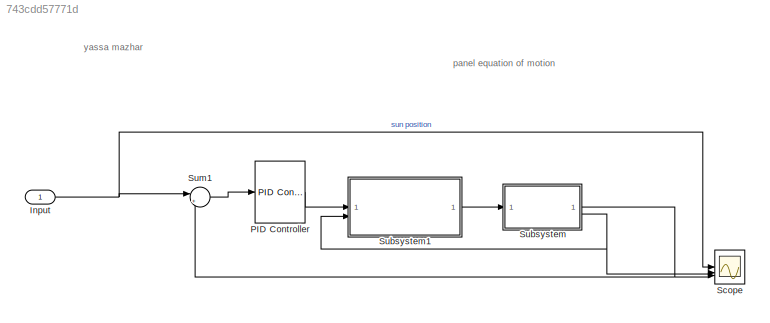
MODEL slx_743cdd57771d
KIND model
CONFIG AbsTol = auto
CONFIG EnableMultiTasking = off
CONFIG FixedStep = auto
CONFIG MaxStep = auto
CONFIG MinStep = auto
CONFIG RelTol = 1e-3
CONFIG SampleTimeConstraint = Unconstrained
CONFIG SolverName = VariableStepAuto
CONFIG StartTime = 0.0
CONFIG StopTime = 15*3600
WORKSPACE source: mxarray member
WORKSPACE kd = 5
WORKSPACE l = 5
BLOCK [Inport] Input
BLOCK [Reference] PID Controller  REF=slpidlib/PID Controller
  LibrarySourceBlock = simulink/Continuous/PID Controller
  SourceBlock = slpidlib/PID Controller
  SourceType = PID 1dof
BLOCK [Scope] Scope
  Floating = off
  NumInputPorts = 3
  ScopeSpecificationString = Simulink.scopes.TimeScopeBlockCfg('CurrentConfiguration', extmgr.ConfigurationSet(extmgr.Configuration('Core','General UI',true),extmgr.Configuration('Core','Source UI',true),extmgr.Configuration('Sources','WiredSimulink',true),extmgr.Configuration('Visuals','Time Domain',true,'SerializedDisplays',{struct('MinYLimReal','-0.77628','MaxYLimReal','5.95147','YLabelReal','','MinYLimMag','0.00000','MaxY...<+1655ch>
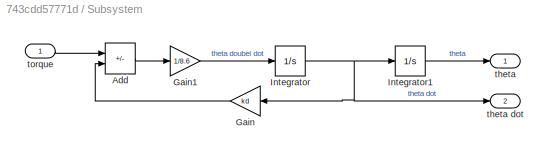
BLOCK [SubSystem] Subsystem
BLOCK [Sum] Subsystem/Add
  IconShape = rectangular
  Inputs = +-
BLOCK [Gain] Subsystem/Gain
  Gain = kd
BLOCK [Gain] Subsystem/Gain1
  Gain = 1/8.6
BLOCK [Integrator] Subsystem/Integrator
BLOCK [Integrator] Subsystem/Integrator1
BLOCK [Outport] Subsystem/theta
BLOCK [Outport] Subsystem/theta dot
  Port = 2
BLOCK [Inport] Subsystem/torque
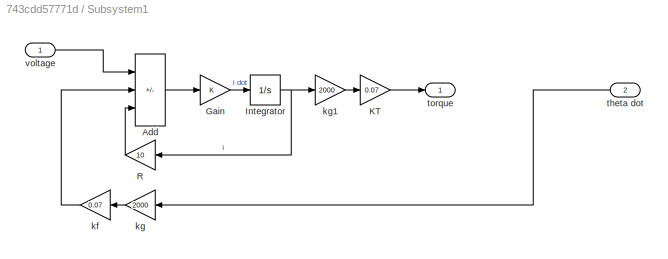
BLOCK [SubSystem] Subsystem1
BLOCK [Sum] Subsystem1/Add
  IconShape = rectangular
  Inputs = +--
BLOCK [Gain] Subsystem1/Gain
BLOCK [Integrator] Subsystem1/Integrator
BLOCK [Gain] Subsystem1/KT
  Gain = 0.07
BLOCK [Gain] Subsystem1/R
  Gain = 10
BLOCK [Gain] Subsystem1/kf
  Gain = 0.07
BLOCK [Gain] Subsystem1/kg
  Gain = 2000
BLOCK [Gain] Subsystem1/kg1
  Gain = 2000
BLOCK [Inport] Subsystem1/theta dot
  Port = 2
BLOCK [Outport] Subsystem1/torque
BLOCK [Inport] Subsystem1/voltage
BLOCK [Sum] Sum1
  Inputs = |+-
ANNOTATION (root): panel equation of motion
ANNOTATION (root): yassa mazhar
NET Input:1 -> Scope:1, Sum1:1
LINE PID Controller:1 -> Subsystem1:1
LINE Subsystem/Add:1 -> Subsystem/Gain1:1
LINE Subsystem/Gain1:1 -> Subsystem/Integrator:1
LINE Subsystem/Gain:1 -> Subsystem/Add:2
LINE Subsystem/Integrator1:1 -> Subsystem/theta:1
NET Subsystem/Integrator:1 -> Subsystem/Gain:1, Subsystem/Integrator1:1, Subsystem/theta dot:1
LINE Subsystem/torque:1 -> Subsystem/Add:1
LINE Subsystem1/Add:1 -> Subsystem1/Gain:1
LINE Subsystem1/Gain:1 -> Subsystem1/Integrator:1
NET Subsystem1/Integrator:1 -> Subsystem1/R:1, Subsystem1/kg1:1
LINE Subsystem1/KT:1 -> Subsystem1/torque:1
LINE Subsystem1/R:1 -> Subsystem1/Add:3
LINE Subsystem1/kf:1 -> Subsystem1/Add:2
LINE Subsystem1/kg1:1 -> Subsystem1/KT:1
LINE Subsystem1/kg:1 -> Subsystem1/kf:1
LINE Subsystem1/theta dot:1 -> Subsystem1/kg:1
LINE Subsystem1/voltage:1 -> Subsystem1/Add:1
LINE Subsystem1:1 -> Subsystem:1
NET Subsystem:1 -> Scope:2, Sum1:2
NET Subsystem:2 -> Scope:3, Subsystem1:2
LINE Sum1:1 -> PID Controller:1
note: NET lines group one-source signal fan-out (src -> all destinations, sorted); 1:1 wires keep LINE
